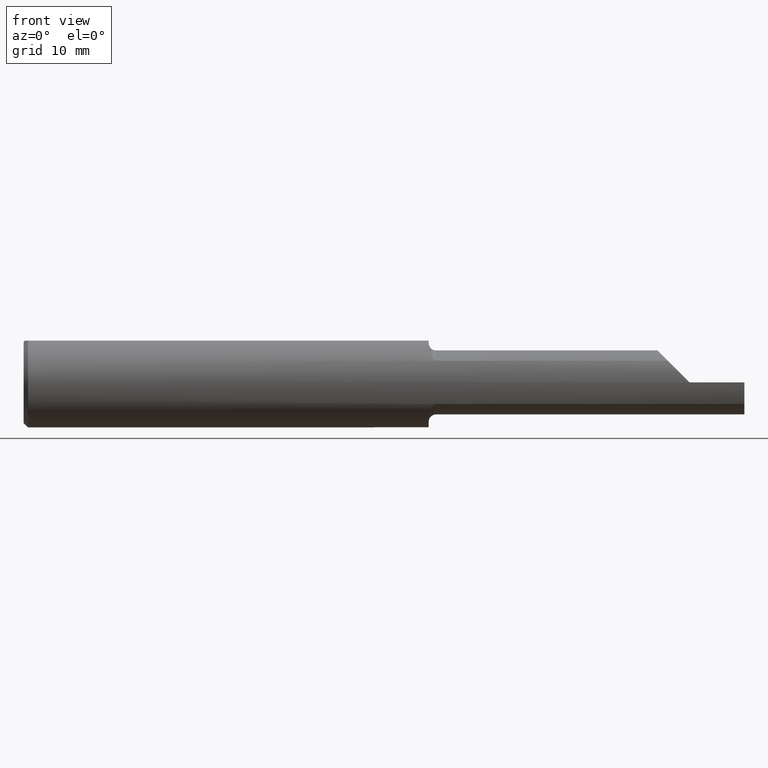
[diagram: clean part render]
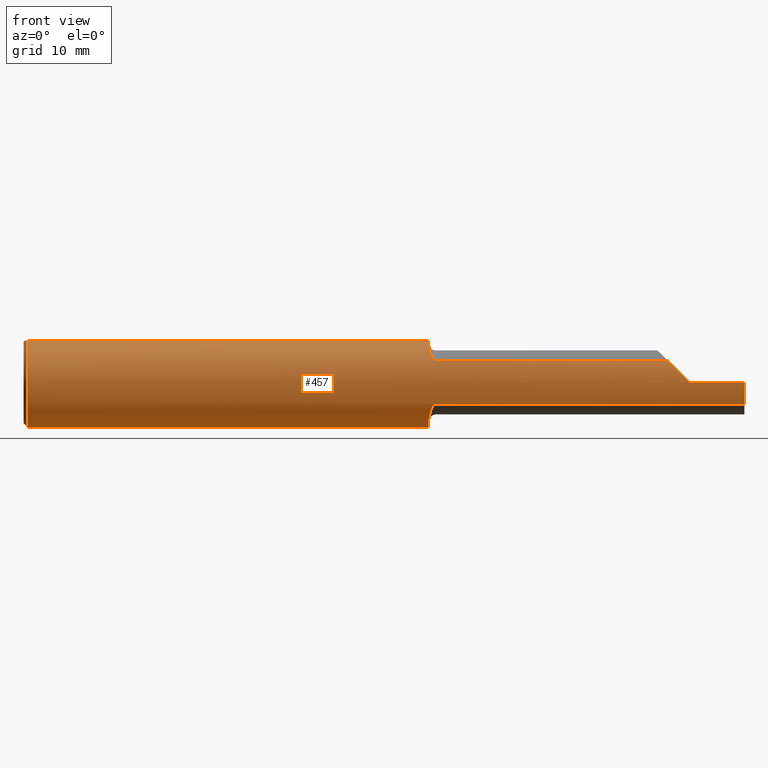
[diagram: same view with one face highlighted and labeled with its STEP entity id]
A machine part, front view. The second image highlights one B-rep face of the part: STEP entity #457.
In plain terms, the highlighted cylindrical surface (partial cylindrical patch) has radius 3.9649 mm, axis along (-1, -0, -0).
Its self-contained STEP definition (entity closure, byte-faithful):
#26 = CARTESIAN_POINT ( 'NONE',  ( 2.283651030168674989, -0.1560830884207283498, 0.02644896983132509483 ) ) ;
#27 = ORIENTED_EDGE ( 'NONE', *, *, #770, .F. ) ;
#29 = CIRCLE ( 'NONE', #152, 0.1560999999999999888 ) ;
#32 = DIRECTION ( 'NONE',  ( -1.000000000000000000, -0.000000000000000000, -0.000000000000000000 ) ) ;
#33 = CARTESIAN_POINT ( 'NONE',  ( 1.429999999999999938, -0.1368622504537204410, 0.07507286061382698050 ) ) ;
#36 = CARTESIAN_POINT ( 'NONE',  ( 1.417567871908215205, -0.1302407872897889951, -0.08611932130684236963 ) ) ;
#38 = CARTESIAN_POINT ( 'NONE',  ( 1.423464868753674173, -0.1351961852369925332, 0.07804305429669788907 ) ) ;
#40 = DIRECTION ( 'NONE',  ( 0.000000000000000000, 0.000000000000000000, -1.000000000000000000 ) ) ;
#47 = CARTESIAN_POINT ( 'NONE',  ( 1.405000000000000249, -0.08082776769509972259, 0.1335443071397166837 ) ) ;
#60 = DIRECTION ( 'NONE',  ( 0.000000000000000000, 0.000000000000000000, -1.000000000000000000 ) ) ;
#64 = CARTESIAN_POINT ( 'NONE',  ( 2.500000000000000000, -0.05756040305626781983, 0.1450999999999999512 ) ) ;
#70 = VERTEX_POINT ( 'NONE', #897 ) ;
#87 = FACE_OUTER_BOUND ( 'NONE', #394, .T. ) ;
#90 = CARTESIAN_POINT ( 'NONE',  ( 1.426349781358731805, -0.1364086230541974309, -0.07590362166592530546 ) ) ;
#94 = CARTESIAN_POINT ( 'NONE',  ( 1.411300778209995999, -0.1198130594394493514, 0.1003199648005457800 ) ) ;
#98 = CARTESIAN_POINT ( 'NONE',  ( 1.905500000000000194, -0.1368622504537204410, -0.07507286061382698050 ) ) ;
#102 = CARTESIAN_POINT ( 'NONE',  ( 1.405000000000000249, -0.08082776769509972259, 0.1335443071397166837 ) ) ;
#114 = VERTEX_POINT ( 'NONE', #102 ) ;
#117 = LINE ( 'NONE', #594, #229 ) ;
#127 = EDGE_CURVE ( 'NONE', #707, #292, #909, .T. ) ;
#129 = EDGE_CURVE ( 'NONE', #528, #272, #577, .T. ) ;
#136 = CARTESIAN_POINT ( 'NONE',  ( 0.01499999999999970975, -0.05756040305626781983, 0.1450999999999999512 ) ) ;
#144 = CARTESIAN_POINT ( 'NONE',  ( 0.01499999999999970281, 0.000000000000000000, -0.1560999999999999888 ) ) ;
#148 = ORIENTED_EDGE ( 'NONE', *, *, #127, .T. ) ;
#152 = AXIS2_PLACEMENT_3D ( 'NONE', #407, #700, #40 ) ;
#158 = EDGE_CURVE ( 'NONE', #654, #903, #237, .T. ) ;
#160 = EDGE_CURVE ( 'NONE', #681, #114, #878, .T. ) ;
#162 = CARTESIAN_POINT ( 'NONE',  ( 1.411298582722805506, -0.1198197303235669919, -0.1003181488768663393 ) ) ;
#169 = CARTESIAN_POINT ( 'NONE',  ( 2.500000000000000000, -0.1560999999999999888, -3.979970649922725226E-17 ) ) ;
#175 = CARTESIAN_POINT ( 'NONE',  ( 2.235027139386173367, -0.1368622504537203854, 0.07507286061382700826 ) ) ;
#178 = EDGE_CURVE ( 'NONE', #890, #114, #785, .T. ) ;
#181 = CARTESIAN_POINT ( 'NONE',  ( 1.405000000000000249, -0.08082776769509972259, -0.1335443071397166837 ) ) ;
#189 = CARTESIAN_POINT ( 'NONE',  ( 1.422300575926264798, -0.1344565892346399061, 0.07931625727899710432 ) ) ;
#190 = VERTEX_POINT ( 'NONE', #424 ) ;
#207 = CARTESIAN_POINT ( 'NONE',  ( 0.01499999999999970281, 0.000000000000000000, 0.000000000000000000 ) ) ;
#217 = VECTOR ( 'NONE', #847, 39.37007874015748143 ) ;
#223 = LINE ( 'NONE', #64, #907 ) ;
#229 = VECTOR ( 'NONE', #952, 39.37007874015748143 ) ;
#237 = LINE ( 'NONE', #98, #217 ) ;
#241 = CARTESIAN_POINT ( 'NONE',  ( 2.258128869355540136, -0.1495342103855425986, 0.05197113064445998271 ) ) ;
#245 = CARTESIAN_POINT ( 'NONE',  ( 1.423506495904680591, -0.1352163519649315082, -0.07800775850415038459 ) ) ;
#247 = CARTESIAN_POINT ( 'NONE',  ( 1.417545102296320358, -0.1302115092214859438, 0.08616258549502014974 ) ) ;
#249 = CARTESIAN_POINT ( 'NONE',  ( 1.405000000000000915, -0.09362651965208497462, -0.1257978552532720562 ) ) ;
#253 = CARTESIAN_POINT ( 'NONE',  ( 2.500000000000000000, 0.000000000000000000, 0.000000000000000000 ) ) ;
#254 = EDGE_CURVE ( 'NONE', #707, #654, #817, .T. ) ;
#266 = CARTESIAN_POINT ( 'NONE',  ( 1.405000000000000249, -0.05756040305626783371, 0.1450999999999999512 ) ) ;
#271 = CARTESIAN_POINT ( 'NONE',  ( 2.235027139386173367, -0.1368622504537203854, 0.07507286061382700826 ) ) ;
#272 = VERTEX_POINT ( 'NONE', #271 ) ;
#274 = CARTESIAN_POINT ( 'NONE',  ( 2.310000000000000053, 0.000000000000000000, 0.000000000000000000 ) ) ;
#277 = CARTESIAN_POINT ( 'NONE',  ( 1.405398932116763033, -0.09332769694267485650, 0.1253468102978374799 ) ) ;
#292 = VERTEX_POINT ( 'NONE', #556 ) ;
#295 = CARTESIAN_POINT ( 'NONE',  ( 0.01499999999999970281, 0.000000000000000000, 0.000000000000000000 ) ) ;
#298 = ORIENTED_EDGE ( 'NONE', *, *, #160, .F. ) ;
#302 = VERTEX_POINT ( 'NONE', #136 ) ;
#313 = ORIENTED_EDGE ( 'NONE', *, *, #129, .T. ) ;
#318 = CARTESIAN_POINT ( 'NONE',  ( 1.422325674773647020, -0.1344725336059487963, -0.07928898134248256457 ) ) ;
#324 = CARTESIAN_POINT ( 'NONE',  ( 2.310000000000000053, -0.1560999679692471886, 9.999999999973052634E-05 ) ) ;
#325 = CARTESIAN_POINT ( 'NONE',  ( 1.426348515781200810, -0.1364107636049786132, 0.07590013438261603018 ) ) ;
#341 = DIRECTION ( 'NONE',  ( 0.000000000000000000, 0.000000000000000000, 1.000000000000000000 ) ) ;
#351 = DIRECTION ( 'NONE',  ( 1.000000000000000000, -0.000000000000000000, -0.000000000000000000 ) ) ;
#352 = AXIS2_PLACEMENT_3D ( 'NONE', #295, #816, #503 ) ;
#376 = ORIENTED_EDGE ( 'NONE', *, *, #158, .F. ) ;
#383 = LINE ( 'NONE', #760, #612 ) ;
#389 = CARTESIAN_POINT ( 'NONE',  ( 1.406962149267435569, -0.1047579505689459761, 0.1159640188207536060 ) ) ;
#394 = EDGE_LOOP ( 'NONE', ( #376, #762, #148, #779, #313, #27, #488, #298, #451, #562, #512, #774, #493, #752 ) ) ;
#407 = CARTESIAN_POINT ( 'NONE',  ( 1.405000000000000249, 0.000000000000000000, 0.000000000000000000 ) ) ;
#413 = DIRECTION ( 'NONE',  ( 1.000000000000000000, 0.000000000000000000, 0.000000000000000000 ) ) ;
#417 = CARTESIAN_POINT ( 'NONE',  ( 1.405000000000000471, -0.08722028877555600135, 0.1296752301274217145 ) ) ;
#424 = CARTESIAN_POINT ( 'NONE',  ( 0.01499999999999970281, 0.05756040305626781983, 0.1450999999999999512 ) ) ;
#430 = AXIS2_PLACEMENT_3D ( 'NONE', #946, #413, #60 ) ;
#437 = CARTESIAN_POINT ( 'NONE',  ( 1.405000000000000249, 0.05756040305626781289, 0.1450999999999999512 ) ) ;
#441 = DIRECTION ( 'NONE',  ( -1.000000000000000000, -0.000000000000000000, -0.000000000000000000 ) ) ;
#443 = AXIS2_PLACEMENT_3D ( 'NONE', #207, #351, #944 ) ;
#451 = ORIENTED_EDGE ( 'NONE', *, *, #842, .T. ) ;
#457 = ADVANCED_FACE ( 'NONE', ( #87 ), #836, .T. ) ;
#460 = CARTESIAN_POINT ( 'NONE',  ( 1.405000000000000249, 0.000000000000000000, 0.000000000000000000 ) ) ;
#466 = DIRECTION ( 'NONE',  ( 0.000000000000000000, 0.000000000000000000, -1.000000000000000000 ) ) ;
#475 = CARTESIAN_POINT ( 'NONE',  ( 2.310000000000000053, -0.1560999679692471886, 9.999999999973052634E-05 ) ) ;
#480 = CARTESIAN_POINT ( 'NONE',  ( 1.419135453872436115, -0.1320388560634702391, 0.08332276230954660523 ) ) ;
#486 = CARTESIAN_POINT ( 'NONE',  ( 2.500000000000000000, -0.1368622504537203854, -0.07507286061382703601 ) ) ;
#488 = ORIENTED_EDGE ( 'NONE', *, *, #178, .T. ) ;
#493 = ORIENTED_EDGE ( 'NONE', *, *, #742, .F. ) ;
#503 = DIRECTION ( 'NONE',  ( 0.000000000000000000, 0.000000000000000000, -1.000000000000000000 ) ) ;
#512 = ORIENTED_EDGE ( 'NONE', *, *, #727, .T. ) ;
#528 = VERTEX_POINT ( 'NONE', #324 ) ;
#532 = EDGE_CURVE ( 'NONE', #190, #822, #383, .T. ) ;
#536 = AXIS2_PLACEMENT_3D ( 'NONE', #274, #555, #341 ) ;
#541 = CARTESIAN_POINT ( 'NONE',  ( 1.413324357153332489, -0.1243322553945040293, 0.09463600456597344446 ) ) ;
#543 = CARTESIAN_POINT ( 'NONE',  ( 1.429999999999999938, -0.1368622504537204410, -0.07507286061382698050 ) ) ;
#555 = DIRECTION ( 'NONE',  ( -1.000000000000000000, -0.000000000000000000, -0.000000000000000000 ) ) ;
#556 = CARTESIAN_POINT ( 'NONE',  ( 2.310000000000000053, -0.1560999999999999888, -3.979970649922725226E-17 ) ) ;
#562 = ORIENTED_EDGE ( 'NONE', *, *, #772, .T. ) ;
#566 = AXIS2_PLACEMENT_3D ( 'NONE', #253, #32, #601 ) ;
#567 = AXIS2_PLACEMENT_3D ( 'NONE', #460, #757, #466 ) ;
#577 =( BOUNDED_CURVE ( )  B_SPLINE_CURVE ( 3, ( #475, #26, #241, #175 ),
 .UNSPECIFIED., .F., .F. ) 
 B_SPLINE_CURVE_WITH_KNOTS ( ( 4, 4 ),
 ( 4.713029595418895212, 5.214101826882463264 ),
 .UNSPECIFIED. ) 
 CURVE ( )  GEOMETRIC_REPRESENTATION_ITEM ( )  RATIONAL_B_SPLINE_CURVE ( ( 1.000000000000000000, 0.9791864302132653464, 0.9791864302132653464, 1.000000000000000000 ) ) 
 REPRESENTATION_ITEM ( '' )  );
#594 = CARTESIAN_POINT ( 'NONE',  ( 1.905500000000000194, -0.1368622504537204410, 0.07507286061382698050 ) ) ;
#601 = DIRECTION ( 'NONE',  ( 0.000000000000000000, 0.000000000000000000, 1.000000000000000000 ) ) ;
#608 = CARTESIAN_POINT ( 'NONE',  ( 1.413312382054486616, -0.1243204233981918955, -0.09465517963088554421 ) ) ;
#611 = CARTESIAN_POINT ( 'NONE',  ( 1.428086506300958236, -0.1368622504537204410, 0.07507286061382698050 ) ) ;
#612 = VECTOR ( 'NONE', #827, 39.37007874015748143 ) ;
#634 = EDGE_CURVE ( 'NONE', #292, #528, #955, .T. ) ;
#650 = B_SPLINE_CURVE_WITH_KNOTS ( 'NONE', 3,
 ( #181, #249, #905, #162, #608, #36, #695, #318, #245, #90, #826, #543 ),
 .UNSPECIFIED., .F., .F.,
 ( 4, 2, 2, 2, 2, 4 ),
 ( 0.000000000000000000, 0.001123756246128514982, 0.001685634369192774099, 0.001966573430724899429, 0.002107042961490961444, 0.002247512492257023459 ),
 .UNSPECIFIED. ) ;
#654 = VERTEX_POINT ( 'NONE', #486 ) ;
#665 = CARTESIAN_POINT ( 'NONE',  ( 1.429999999999999938, -0.1368622504537204410, -0.07507286061382698050 ) ) ;
#681 = VERTEX_POINT ( 'NONE', #266 ) ;
#692 = DIRECTION ( 'NONE',  ( -1.000000000000000000, -0.000000000000000000, -0.000000000000000000 ) ) ;
#693 = VECTOR ( 'NONE', #692, 39.37007874015748143 ) ;
#695 = CARTESIAN_POINT ( 'NONE',  ( 1.419174461442129553, -0.1320749731185602849, -0.08326458372355866056 ) ) ;
#700 = DIRECTION ( 'NONE',  ( 1.000000000000000000, 0.000000000000000000, 0.000000000000000000 ) ) ;
#707 = VERTEX_POINT ( 'NONE', #710 ) ;
#710 = CARTESIAN_POINT ( 'NONE',  ( 2.500000000000000000, -0.1560999999999999333, -3.979970649922725226E-17 ) ) ;
#727 = EDGE_CURVE ( 'NONE', #795, #190, #939, .T. ) ;
#742 = EDGE_CURVE ( 'NONE', #70, #822, #29, .T. ) ;
#752 = ORIENTED_EDGE ( 'NONE', *, *, #945, .T. ) ;
#757 = DIRECTION ( 'NONE',  ( 1.000000000000000000, 0.000000000000000000, 0.000000000000000000 ) ) ;
#760 = CARTESIAN_POINT ( 'NONE',  ( 2.500000000000000000, 0.05756040305626781983, 0.1450999999999999512 ) ) ;
#762 = ORIENTED_EDGE ( 'NONE', *, *, #254, .F. ) ;
#767 = CIRCLE ( 'NONE', #352, 0.1560999999999999888 ) ;
#770 = EDGE_CURVE ( 'NONE', #890, #272, #117, .T. ) ;
#772 = EDGE_CURVE ( 'NONE', #302, #795, #767, .T. ) ;
#773 = CARTESIAN_POINT ( 'NONE',  ( 1.408112206751179540, -0.1100485138537333069, 0.1109440811778998615 ) ) ;
#774 = ORIENTED_EDGE ( 'NONE', *, *, #532, .T. ) ;
#779 = ORIENTED_EDGE ( 'NONE', *, *, #634, .T. ) ;
#785 = B_SPLINE_CURVE_WITH_KNOTS ( 'NONE', 3,
 ( #33, #611, #325, #38, #189, #480, #247, #541, #94, #773, #389, #277, #417, #47 ),
 .UNSPECIFIED., .F., .F.,
 ( 4, 2, 2, 2, 2, 2, 4 ),
 ( 0.000000000000000000, 0.0001427501031775221091, 0.0002855002063550442183, 0.0005710004127100888702, 0.001142000825420169067, 0.001713001238130249480, 0.002284001650840329460 ),
 .UNSPECIFIED. ) ;
#795 = VERTEX_POINT ( 'NONE', #144 ) ;
#816 = DIRECTION ( 'NONE',  ( 1.000000000000000000, -0.000000000000000000, -0.000000000000000000 ) ) ;
#817 = CIRCLE ( 'NONE', #430, 0.1560999999999999888 ) ;
#822 = VERTEX_POINT ( 'NONE', #437 ) ;
#826 = CARTESIAN_POINT ( 'NONE',  ( 1.428106053287834243, -0.1368622504537226059, -0.07507286061382432985 ) ) ;
#827 = DIRECTION ( 'NONE',  ( 1.000000000000000000, 0.000000000000000000, 0.000000000000000000 ) ) ;
#836 = CYLINDRICAL_SURFACE ( 'NONE', #566, 0.1560999999999999888 ) ;
#842 = EDGE_CURVE ( 'NONE', #681, #302, #223, .T. ) ;
#847 = DIRECTION ( 'NONE',  ( -1.000000000000000000, -0.000000000000000000, -0.000000000000000000 ) ) ;
#878 = CIRCLE ( 'NONE', #567, 0.1560999999999999888 ) ;
#890 = VERTEX_POINT ( 'NONE', #957 ) ;
#897 = CARTESIAN_POINT ( 'NONE',  ( 1.405000000000000249, -0.08082776769509972259, -0.1335443071397166837 ) ) ;
#903 = VERTEX_POINT ( 'NONE', #665 ) ;
#905 = CARTESIAN_POINT ( 'NONE',  ( 1.406469879655009469, -0.1049921135599801020, -0.1164346218518444304 ) ) ;
#907 = VECTOR ( 'NONE', #441, 39.37007874015748143 ) ;
#909 = LINE ( 'NONE', #169, #693 ) ;
#939 = CIRCLE ( 'NONE', #443, 0.1560999999999999888 ) ;
#944 = DIRECTION ( 'NONE',  ( 0.000000000000000000, 0.000000000000000000, -1.000000000000000000 ) ) ;
#945 = EDGE_CURVE ( 'NONE', #70, #903, #650, .T. ) ;
#946 = CARTESIAN_POINT ( 'NONE',  ( 2.500000000000000000, 0.000000000000000000, 0.000000000000000000 ) ) ;
#952 = DIRECTION ( 'NONE',  ( 1.000000000000000000, 0.000000000000000000, 0.000000000000000000 ) ) ;
#955 = CIRCLE ( 'NONE', #536, 0.1560999999999999888 ) ;
#957 = CARTESIAN_POINT ( 'NONE',  ( 1.429999999999999938, -0.1368622504537204410, 0.07507286061382698050 ) ) ;